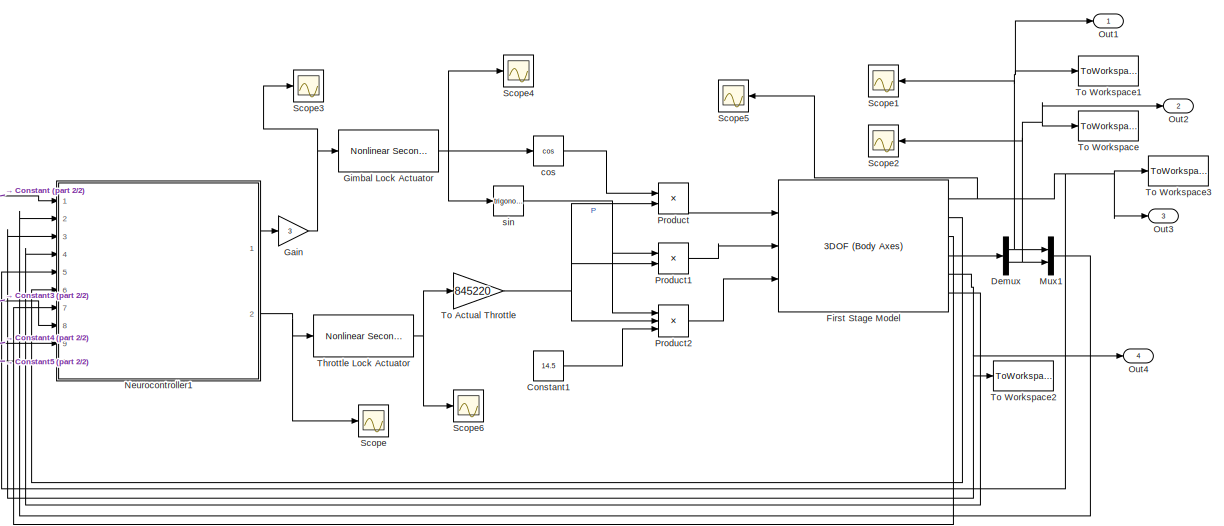
[diagram: root canvas - part 1/2, most of the canvas]
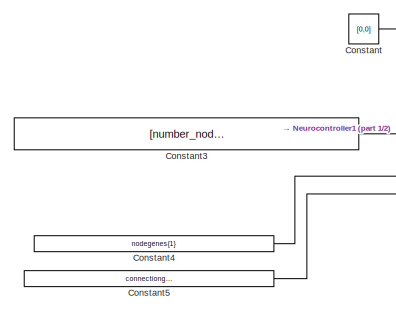
[diagram: root canvas - part 2/2, middle left region]
MODEL slx_bea00ef8c06f
KIND model
CONFIG AbsTol = auto
CONFIG EnableMultiTasking = on
CONFIG FixedStep = auto
CONFIG MaxStep = auto
CONFIG MinStep = auto
CONFIG RelTol = 1e-3
CONFIG SampleTimeConstraint = Unconstrained
CONFIG Solver = VariableStepAuto
CONFIG SolverName = VariableStepAuto
CONFIG StartTime = 0.0
CONFIG StopTime = 10
BLOCK [Constant] Constant
  Value = [0,0]
BLOCK [Constant] Constant1
  Value = 14.5
BLOCK [Constant] Constant3
  Value = [number_nodes(1), number_connections(1)]
BLOCK [Constant] Constant4
  Value = nodegenes{1}
BLOCK [Constant] Constant5
  Value = connectiongenes{1}
BLOCK [Demux] Demux
  DisplayOption = bar
  Outputs = 2
  Ports = [1, 2]
BLOCK [Reference] First Stage Model  REF=shared3dof/3DOF (Body Axes)
  Ports = [3, 6]
  SourceBlock = shared3dof/3DOF (Body Axes)
  SourceProductBaseCode = AE
  SourceProductName = Aerospace Blockset
  SourceType = 3DOF EoM
BLOCK [Gain] Gain
  Gain = 3
  OutDataTypeStr = Inherit: Inherit via internal rule
  ParamDataTypeStr = Inherit: Inherit via internal rule
  SaturateOnIntegerOverflow = off
BLOCK [Reference] Gimbal Lock Actuator  REF=aerolibactuator/Nonlinear Second-Order Actuator
  Ports = [1, 1]
  SourceBlock = aerolibactuator/Nonlinear Second-Order Actuator
  SourceProductBaseCode = AE
  SourceProductName = Aerospace Blockset
  SourceType = NonlinearSecondOrderActuator
BLOCK [Mux] Mux1
  DisplayOption = bar
  Inputs = 2
  Ports = [2, 1]
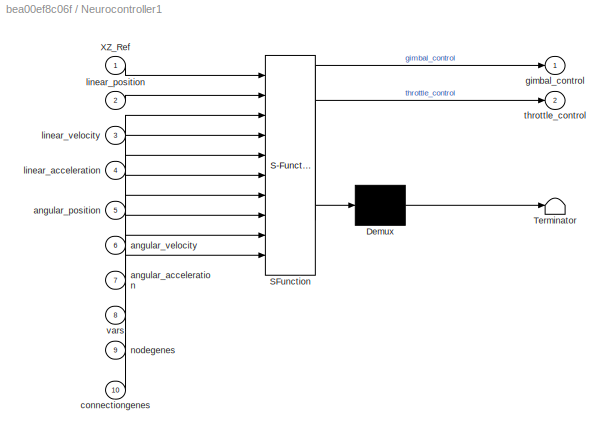
BLOCK [SubSystem] Neurocontroller1
  ErrorFcn = Stateflow.Translate.translate
  PermitHierarchicalResolution = ExplicitOnly
  Ports = [10, 2]
  RequestExecContextInheritance = off
  SFBlockType = MATLAB Function
  TreatAsAtomicUnit = on
BLOCK [Demux] Neurocontroller1/ Demux 
  Outputs = 1
  Ports = [1, 1]
BLOCK [S-Function] Neurocontroller1/ SFunction 
  EnableBusSupport = off
  FunctionName = sf_sfun
  PortCounts = [10 3]
  Ports = [10, 3]
  SFcnIsStateOwnerBlock = off
  SFunctionDeploymentMode = off
  Tag = Stateflow S-Function NEAT_NN_Par_Controller_2 2
BLOCK [Terminator] Neurocontroller1/ Terminator 
BLOCK [Inport] Neurocontroller1/XZ_Ref
  IconDisplay = Port number
BLOCK [Inport] Neurocontroller1/angular_acceleration
  IconDisplay = Port number
  Port = 7
BLOCK [Inport] Neurocontroller1/angular_position
  IconDisplay = Port number
  Port = 5
BLOCK [Inport] Neurocontroller1/angular_velocity
  IconDisplay = Port number
  Port = 6
BLOCK [Inport] Neurocontroller1/connectiongenes
  IconDisplay = Port number
  Port = 10
BLOCK [Outport] Neurocontroller1/gimbal_control
  IconDisplay = Port number
BLOCK [Inport] Neurocontroller1/linear_acceleration
  IconDisplay = Port number
  Port = 4
BLOCK [Inport] Neurocontroller1/linear_position
  IconDisplay = Port number
  Port = 2
BLOCK [Inport] Neurocontroller1/linear_velocity
  IconDisplay = Port number
  Port = 3
BLOCK [Inport] Neurocontroller1/nodegenes
  IconDisplay = Port number
  Port = 9
BLOCK [Outport] Neurocontroller1/throttle_control
  IconDisplay = Port number
  Port = 2
BLOCK [Inport] Neurocontroller1/vars
  IconDisplay = Port number
  Port = 8
BLOCK [Outport] Out1
  IconDisplay = Port number
BLOCK [Outport] Out2
  IconDisplay = Port number
  Port = 2
BLOCK [Outport] Out3
  IconDisplay = Port number
  Port = 3
BLOCK [Outport] Out4
  IconDisplay = Port number
  Port = 4
BLOCK [Product] Product
  InputSameDT = off
  OutDataTypeStr = Inherit: Inherit via internal rule
  Ports = [2, 1]
  RndMeth = Floor
  SaturateOnIntegerOverflow = off
BLOCK [Product] Product1
  InputSameDT = off
  OutDataTypeStr = Inherit: Inherit via internal rule
  Ports = [2, 1]
  RndMeth = Floor
  SaturateOnIntegerOverflow = off
BLOCK [Product] Product2
  InputSameDT = off
  Inputs = 3
  OutDataTypeStr = Inherit: Inherit via internal rule
  Ports = [3, 1]
  RndMeth = Floor
  SaturateOnIntegerOverflow = off
BLOCK [Scope] Scope
  Floating = off
  NumInputPorts = 1
  Ports = [1]
  ScopeSpecificationString = Simulink.scopes.TimeScopeBlockCfg('CurrentConfiguration', extmgr.ConfigurationSet(extmgr.Configuration('Core','General UI',true),extmgr.Configuration('Core','Source UI',true),extmgr.Configuration('Sources','WiredSimulink',true),extmgr.Configuration('Visuals','Time Domain',true,'SerializedDisplays',{struct('MinYLimReal','-1.25','MaxYLimReal','1.25','YLabelReal','','MinYLimMag','0.00000','MaxYLimMag...<+1319ch>
BLOCK [Scope] Scope1
  Floating = off
  NumInputPorts = 1
  Ports = [1]
  ScopeSpecificationString = Simulink.scopes.TimeScopeBlockCfg('CurrentConfiguration', extmgr.ConfigurationSet(extmgr.Configuration('Core','General UI',true),extmgr.Configuration('Core','Source UI',true),extmgr.Configuration('Sources','WiredSimulink',true,'DataLoggingVariableName','ScopeData1'),extmgr.Configuration('Visuals','Time Domain',true,'SerializedDisplays',{struct('MinYLimReal','-6.32531','MaxYLimReal','56.94214','YLa...<+1370ch>
BLOCK [Scope] Scope2
  Floating = off
  NumInputPorts = 1
  Ports = [1]
  ScopeSpecificationString = Simulink.scopes.TimeScopeBlockCfg('CurrentConfiguration', extmgr.ConfigurationSet(extmgr.Configuration('Core','General UI',true),extmgr.Configuration('Core','Source UI',true),extmgr.Configuration('Sources','WiredSimulink',true,'DataLoggingVariableName','ScopeData2'),extmgr.Configuration('Visuals','Time Domain',true,'SerializedDisplays',{struct('MinYLimReal','-359.21231','MaxYLimReal','232.91082','...<+1380ch>
BLOCK [Scope] Scope3
  Floating = off
  NumInputPorts = 1
  Ports = [1]
  ScopeSpecificationString = Simulink.scopes.TimeScopeBlockCfg('CurrentConfiguration', extmgr.ConfigurationSet(extmgr.Configuration('Core','General UI',true),extmgr.Configuration('Core','Source UI',true),extmgr.Configuration('Sources','WiredSimulink',true,'DataLoggingVariableName','ScopeData3'),extmgr.Configuration('Visuals','Time Domain',true,'SerializedDisplays',{struct('MinYLimReal','-3.75','MaxYLimReal','3.75','YLabelReal...<+1345ch>
BLOCK [Scope] Scope4
  Floating = off
  NumInputPorts = 1
  Ports = [1]
  ScopeSpecificationString = Simulink.scopes.TimeScopeBlockCfg('CurrentConfiguration', extmgr.ConfigurationSet(extmgr.Configuration('Core','General UI',true),extmgr.Configuration('Core','Source UI',true),extmgr.Configuration('Sources','WiredSimulink',true,'DataLoggingVariableName','ScopeData4'),extmgr.Configuration('Visuals','Time Domain',true,'SerializedDisplays',{struct('MinYLimReal','-0.06545','MaxYLimReal','0.06545','YLab...<+1379ch>
BLOCK [Scope] Scope5
  Floating = off
  NumInputPorts = 1
  Ports = [1]
  ScopeSpecificationString = Simulink.scopes.TimeScopeBlockCfg('CurrentConfiguration', extmgr.ConfigurationSet(extmgr.Configuration('Core','General UI',true),extmgr.Configuration('Core','Source UI',true),extmgr.Configuration('Sources','WiredSimulink',true,'DataLoggingVariableName','ScopeData5'),extmgr.Configuration('Visuals','Time Domain',true,'SerializedDisplays',{struct('MinYLimReal','-0.46744','MaxYLimReal','4.28272','YLab...<+1378ch>
BLOCK [Scope] Scope6
  Floating = off
  NumInputPorts = 1
  Ports = [1]
  ScopeSpecificationString = Simulink.scopes.TimeScopeBlockCfg('CurrentConfiguration', extmgr.ConfigurationSet(extmgr.Configuration('Core','General UI',true),extmgr.Configuration('Core','Source UI',true),extmgr.Configuration('Sources','WiredSimulink',true,'DataLoggingVariableName','ScopeData1'),extmgr.Configuration('Visuals','Time Domain',true,'SerializedDisplays',{struct('MinYLimReal','-0.11788','MaxYLimReal','1.0609','YLabe...<+1377ch>
BLOCK [Reference] Throttle Lock Actuator  REF=aerolibactuator/Nonlinear Second-Order Actuator
  Ports = [1, 1]
  SourceBlock = aerolibactuator/Nonlinear Second-Order Actuator
  SourceProductBaseCode = AE
  SourceProductName = Aerospace Blockset
  SourceType = NonlinearSecondOrderActuator
BLOCK [Gain] To Actual Throttle
  Gain = 845220
  OutDataTypeStr = Inherit: Inherit via internal rule
  ParamDataTypeStr = Inherit: Inherit via internal rule
  SaturateOnIntegerOverflow = off
BLOCK [ToWorkspace] To Workspace
  FixptAsFi = on
  MaxDataPoints = inf
  Ports = [1]
  SampleTime = 0.01
  Save2DSignal = 3-D array (concatenate along third dimension)
  SaveFormat = Timeseries
  VariableName = Z0
BLOCK [ToWorkspace] To Workspace1
  FixptAsFi = on
  MaxDataPoints = inf
  Ports = [1]
  SampleTime = 0.01
  Save2DSignal = 3-D array (concatenate along third dimension)
  SaveFormat = Timeseries
  VariableName = X0
BLOCK [ToWorkspace] To Workspace2
  FixptAsFi = on
  MaxDataPoints = inf
  Ports = [1]
  SampleTime = 0.01
  Save2DSignal = 3-D array (concatenate along third dimension)
  SaveFormat = Timeseries
  VariableName = V
BLOCK [ToWorkspace] To Workspace3
  FixptAsFi = on
  MaxDataPoints = inf
  Ports = [1]
  SampleTime = 0.01
  Save2DSignal = 3-D array (concatenate along third dimension)
  SaveFormat = Timeseries
  VariableName = Theta
BLOCK [Trigonometry] cos
  Operator = cos
  Ports = [1, 1]
BLOCK [Trigonometry] sin
  Ports = [1, 1]
LINE Constant1:1 -> Product2:3
LINE Constant3:1 -> Neurocontroller1:8
LINE Constant4:1 -> Neurocontroller1:9
LINE Constant5:1 -> Neurocontroller1:10
LINE Constant:1 -> Neurocontroller1:1
NET Demux:1 -> Mux1:1, Out1:1, Scope1:1, To Workspace1:1
NET Demux:2 -> Mux1:2, Out2:1, Scope2:1, To Workspace:1
NET First Stage Model:1 -> Neurocontroller1:5, Out3:1, Scope5:1, To Workspace3:1
LINE First Stage Model:2 -> Neurocontroller1:6
LINE First Stage Model:3 -> Neurocontroller1:7
LINE First Stage Model:4 -> Demux:1
NET First Stage Model:5 -> Neurocontroller1:3, Out4:1, To Workspace2:1
LINE First Stage Model:6 -> Neurocontroller1:4
NET Gain:1 -> Gimbal Lock Actuator:1, Scope3:1
NET Gimbal Lock Actuator:1 -> Scope4:1, cos:1, sin:1
LINE Mux1:1 -> Neurocontroller1:2
LINE Neurocontroller1:1 -> Gain:1
NET Neurocontroller1:2 -> Scope:1, Throttle Lock Actuator:1
LINE Product1:1 -> First Stage Model:2
LINE Product2:1 -> First Stage Model:3
LINE Product:1 -> First Stage Model:1
NET Throttle Lock Actuator:1 -> Scope6:1, To Actual Throttle:1
NET To Actual Throttle:1 -> Product1:2, Product2:2, Product:2
LINE cos:1 -> Product:1
NET sin:1 -> Product1:1, Product2:1
note: NET lines group one-source signal fan-out (src -> all destinations, sorted); 1:1 wires keep LINE
CHART Neurocontroller1 states=1 transitions=1
  STATE_LABEL 'eML_blk_kernel()'
  STATE_LABEL 'SCRIPT:\nfunction [gimbal_control, throttle_control]  = NN(XZ_Ref, linear_position, linear_velocity, linear_acceleration, angular_position, angular_velocity, angular_acceleration, vars, nodegenes, connectiongenes)\n%#codegen\nNN_population.nodegenes=nodegenes;\nNN_population.connectiongenes=connectiongenes;\n\nnumber_nodes=vars(1);\nnumber_connections=vars(2);\n\n% change input signals\n      NN_population....<+2221ch>'
